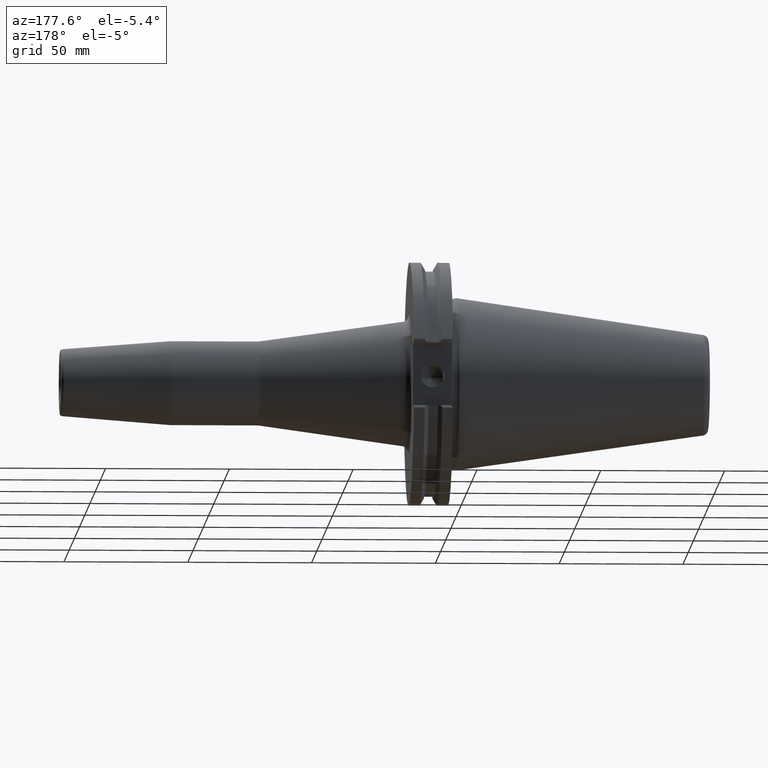
[diagram: clean part render]
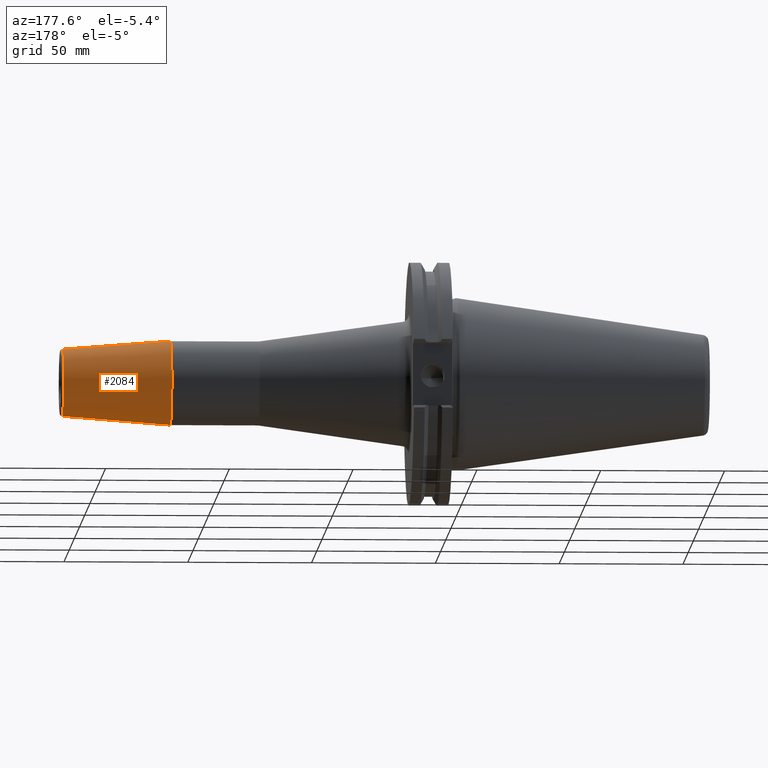
[diagram: same view with one face highlighted and labeled with its STEP entity id]
A machine part, auxiliary view. The second image highlights one B-rep face of the part: STEP entity #2084.
In plain terms, the highlighted conical surface has half-angle 4.5 deg.
Its self-contained STEP definition (entity closure, byte-faithful):
#458=DIRECTION('',(-9.969173337329E-1,0.E0,-7.845909573069E-2));
#459=VECTOR('',#458,4.372413156490E1);
#460=CARTESIAN_POINT('',(1.590784590957E2,0.E0,-1.357252684208E1));
#461=LINE('',#460,#459);
#462=DIRECTION('',(-9.969173337329E-1,0.E0,7.845909573069E-2));
#463=VECTOR('',#462,4.372413156490E1);
#464=CARTESIAN_POINT('',(1.590784590957E2,0.E0,1.357252684208E1));
#465=LINE('',#464,#463);
#471=CARTESIAN_POINT('',(1.590784590957E2,0.E0,0.E0));
#472=DIRECTION('',(1.E0,0.E0,0.E0));
#473=DIRECTION('',(0.E0,0.E0,-1.E0));
#474=AXIS2_PLACEMENT_3D('',#471,#472,#473);
#476=CARTESIAN_POINT('',(1.154891144363E2,0.E0,0.E0));
#477=DIRECTION('',(1.E0,0.E0,0.E0));
#478=DIRECTION('',(0.E0,0.E0,-1.E0));
#479=AXIS2_PLACEMENT_3D('',#476,#477,#478);
#1314=CARTESIAN_POINT('',(1.590784590957E2,0.E0,-1.357252684208E1));
#1316=VERTEX_POINT('',#1314);
#1317=CARTESIAN_POINT('',(1.154891144363E2,0.E0,-1.700308266627E1));
#1318=VERTEX_POINT('',#1317);
#1344=CARTESIAN_POINT('',(1.590784590957E2,0.E0,1.357252684208E1));
#1346=VERTEX_POINT('',#1344);
#1347=CARTESIAN_POINT('',(1.154891144363E2,0.E0,1.700308266627E1));
#1348=VERTEX_POINT('',#1347);
#2072=CARTESIAN_POINT('',(1.372837867660E2,0.E0,0.E0));
#2073=DIRECTION('',(-1.E0,0.E0,0.E0));
#2074=DIRECTION('',(0.E0,0.E0,-1.E0));
#2075=AXIS2_PLACEMENT_3D('',#2072,#2073,#2074);
#2076=CONICAL_SURFACE('',#2075,1.528780475417E1,4.500000000164E0);
#2077=ORIENTED_EDGE('',*,*,#2062,.F.);
#2078=ORIENTED_EDGE('',*,*,#2039,.T.);
#2079=ORIENTED_EDGE('',*,*,#2066,.T.);
#2081=ORIENTED_EDGE('',*,*,#2080,.F.);
#2082=EDGE_LOOP('',(#2077,#2078,#2079,#2081));
#2083=FACE_OUTER_BOUND('',#2082,.F.);
#2084=ADVANCED_FACE('',(#2083),#2076,.T.);
#475=CIRCLE('',#474,1.357252684208E1);
#480=CIRCLE('',#479,1.700308266627E1);
#2039=EDGE_CURVE('',#1316,#1346,#475,.T.);
#2062=EDGE_CURVE('',#1316,#1318,#461,.T.);
#2066=EDGE_CURVE('',#1346,#1348,#465,.T.);
#2080=EDGE_CURVE('',#1318,#1348,#480,.T.);